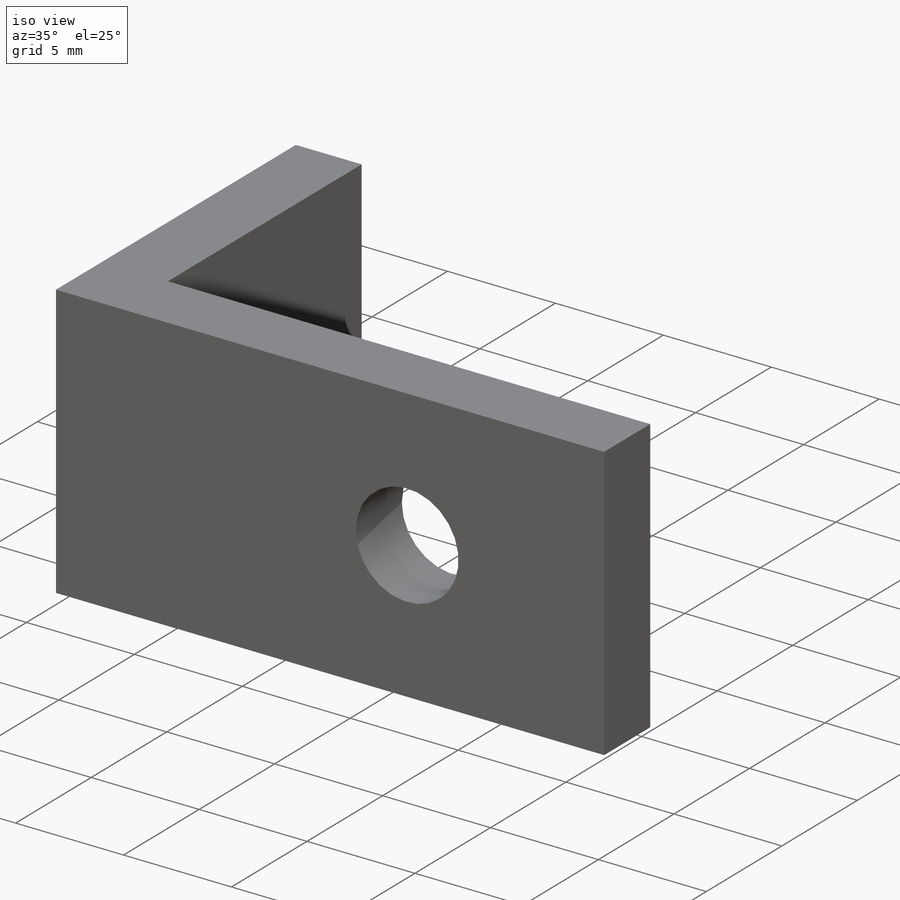
[diagram: iso view]
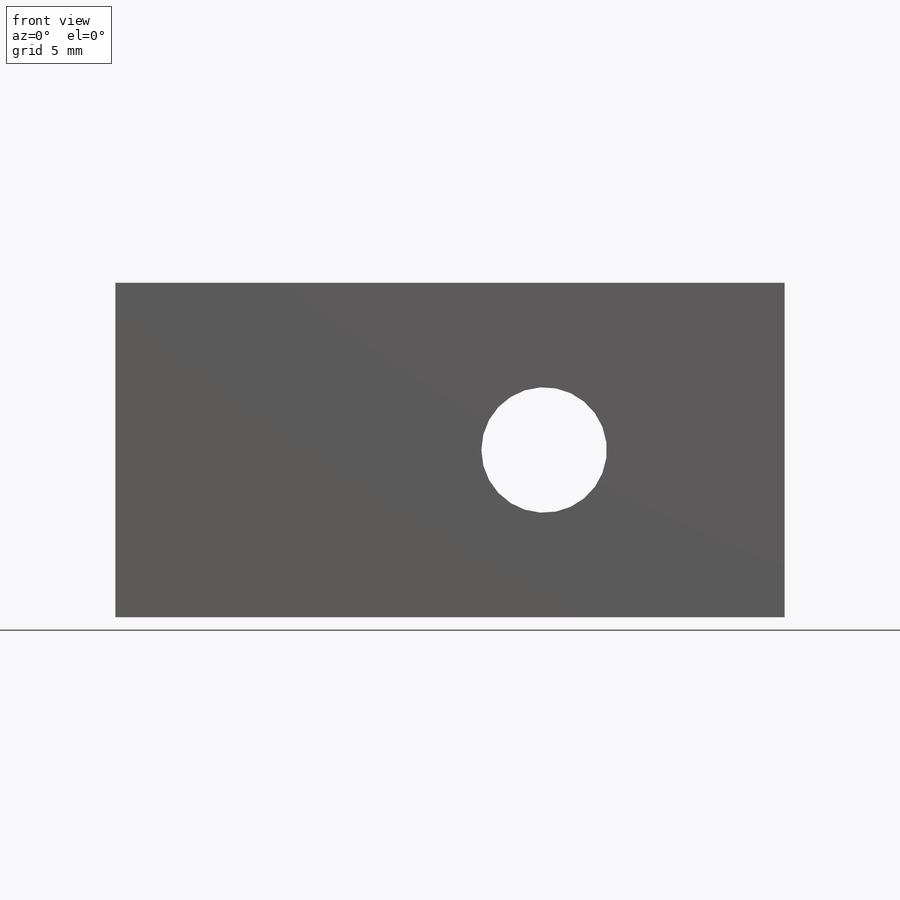
[diagram: front view]
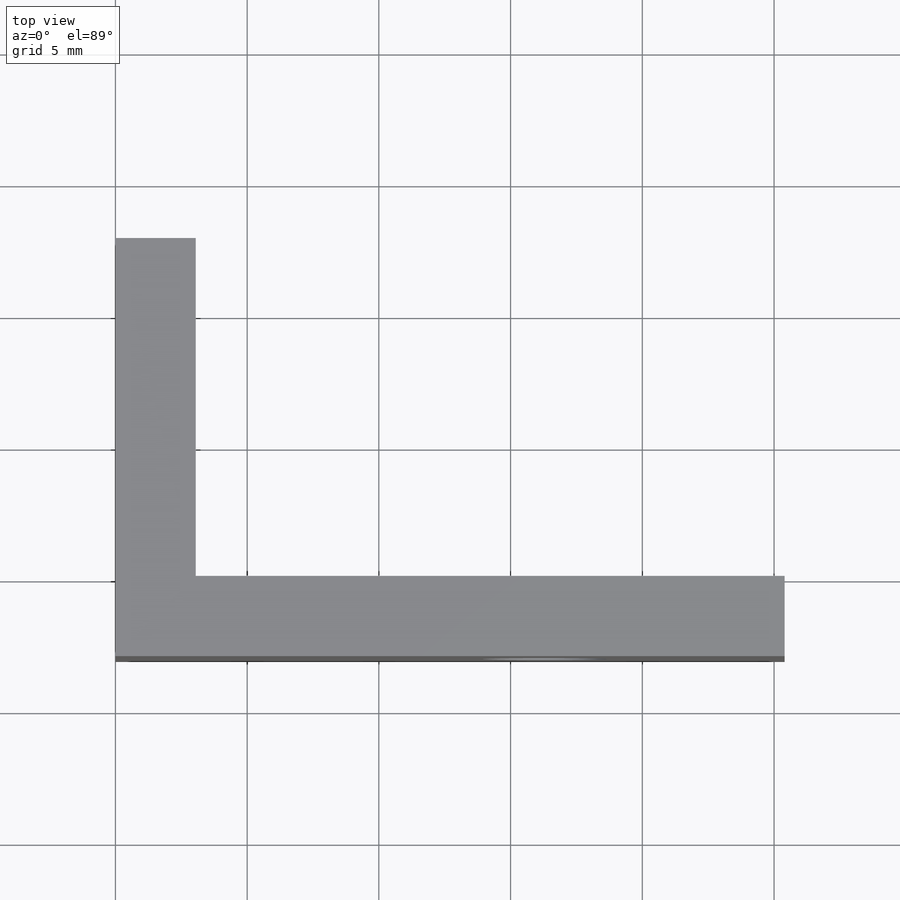
[diagram: top view]
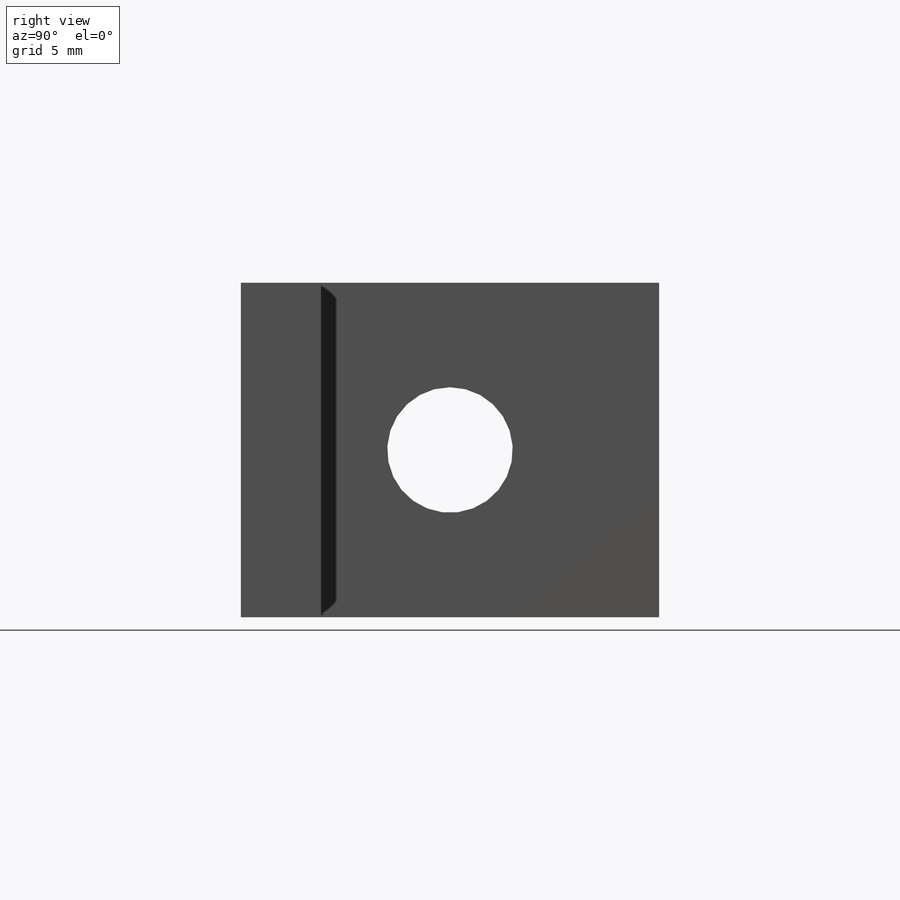
[diagram: right view]
SOLIDWORKS PART (.sldprt)
format: sldprt  version: not decoded by parser v0  size: 141,824 bytes
history: native  units: mm
features: sketch x4, extrude x2, cut_extrude x2, material x1 (+13 scaffold rows collapsed)
feature tree (22):
  scaffold x13  (default folders/planes/origin — collapsed)
  material  "Material <not specified>"
  sketch  "Sketch1"  dims[D1=25.4mm D2=12.7mm]
  extrude  "Boss-Extrude1"  Depth=3.048mm
  sketch  "Sketch2"  dims[D1=3.048mm]
  extrude  "Boss-Extrude2"  Depth=15.875mm
  sketch  "Sketch3"  dims[D2=4.7625mm D1=~9.128125mm]
  cut_extrude  "Cut-Extrude1"  [1 undecoded]
  sketch  "Sketch4"  dims[D2=4.7625mm D1=7.9375mm]
  cut_extrude  "Cut-Extrude2"  [1 undecoded]
decode coverage: 6 of 8 modeling features carry decoded parameters
note: ~ marks probable driven/reference dimensions
note: 2 parameter values undecoded
note: suppression state not decoded; provenance and decode notes live in map.json
